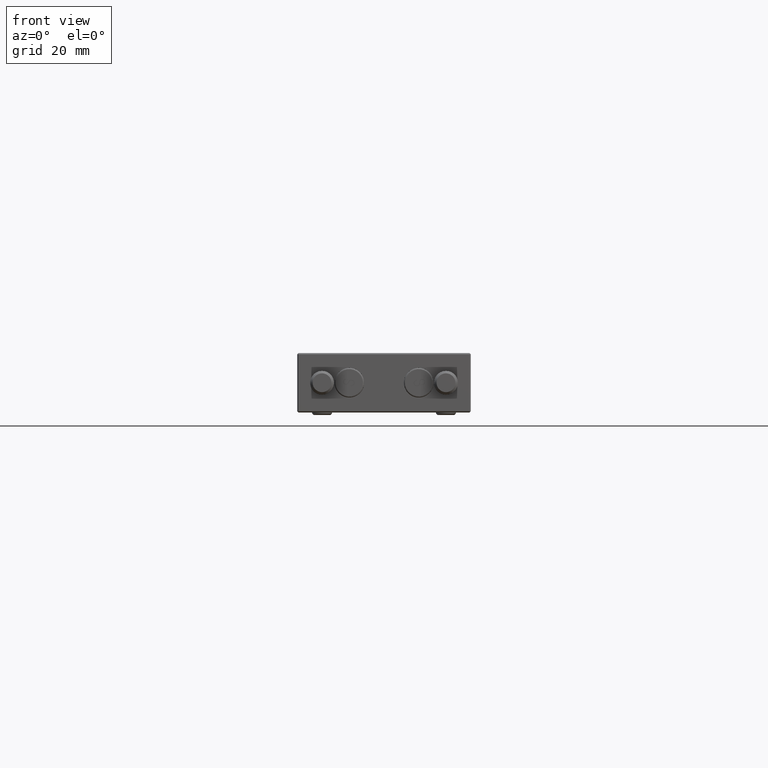
[diagram: clean part render]
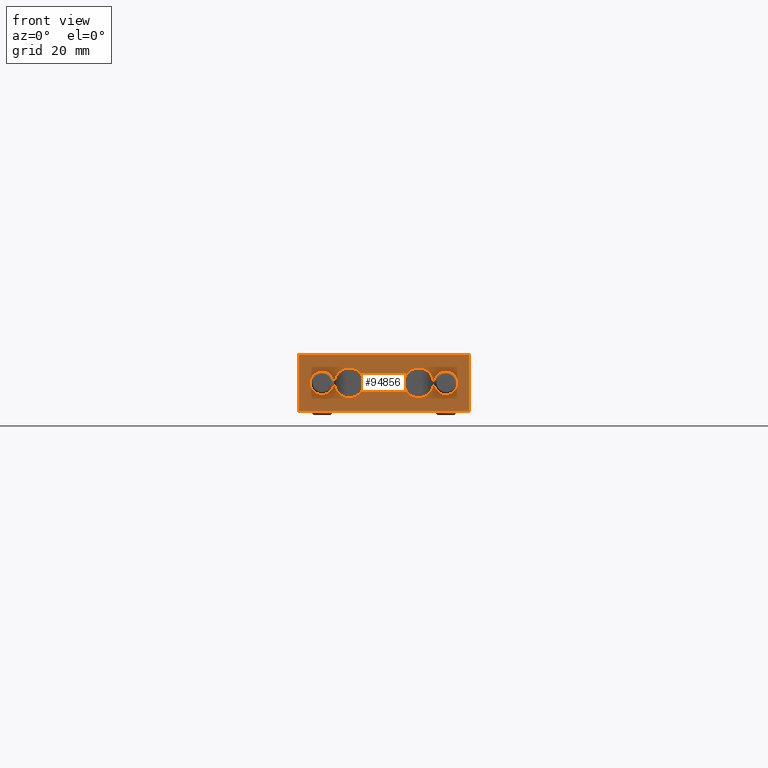
[diagram: same view with one face highlighted and labeled with its STEP entity id]
A machine part, front view. The second image highlights one B-rep face of the part: STEP entity #94856.
In plain terms, the highlighted planar face has unit normal (0, 1, 0).
Its self-contained STEP definition (entity closure, byte-faithful):
#66 = DIRECTION ( 'NONE',  ( 0.000000000000000000, 1.000000000000000000, 0.000000000000000000 ) ) ;
#664 = PLANE ( 'NONE',  #41954 ) ;
#2972 = CARTESIAN_POINT ( 'NONE',  ( -12.50000000000000000, 0.000000000000000000, -1.530808498934191324E-15 ) ) ;
#3305 = CIRCLE ( 'NONE', #5198, 2.399999999999999023 ) ;
#3796 = VERTEX_POINT ( 'NONE', #56646 ) ;
#3903 = VERTEX_POINT ( 'NONE', #100871 ) ;
#5198 = AXIS2_PLACEMENT_3D ( 'NONE', #2972, #75808, #56733 ) ;
#6355 = ORIENTED_EDGE ( 'NONE', *, *, #21929, .T. ) ;
#7058 = DIRECTION ( 'NONE',  ( -0.000000000000000000, -1.000000000000000000, -0.000000000000000000 ) ) ;
#8580 = AXIS2_PLACEMENT_3D ( 'NONE', #103493, #58089, #12720 ) ;
#9022 = FACE_BOUND ( 'NONE', #19961, .T. ) ;
#10180 = EDGE_CURVE ( 'NONE', #40099, #71996, #117508, .T. ) ;
#10207 = FACE_BOUND ( 'NONE', #82655, .T. ) ;
#11998 = EDGE_CURVE ( 'NONE', #3903, #42832, #46673, .T. ) ;
#12367 = CARTESIAN_POINT ( 'NONE',  ( 17.25000000000001066, 0.000000000000000000, 5.750000000000000888 ) ) ;
#12720 = DIRECTION ( 'NONE',  ( 0.000000000000000000, 0.000000000000000000, 1.000000000000000000 ) ) ;
#12989 = EDGE_CURVE ( 'NONE', #42832, #3903, #33574, .T. ) ;
#15357 = EDGE_CURVE ( 'NONE', #67470, #29190, #3305, .T. ) ;
#16622 = CARTESIAN_POINT ( 'NONE',  ( 17.25000000000001066, 0.000000000000000000, 0.000000000000000000 ) ) ;
#17070 = DIRECTION ( 'NONE',  ( 0.000000000000000000, -1.000000000000000000, 0.000000000000000000 ) ) ;
#17867 = CARTESIAN_POINT ( 'NONE',  ( -12.50000000000000000, 0.000000000000000000, -2.400000000000000799 ) ) ;
#19961 = EDGE_LOOP ( 'NONE', ( #57112, #100105 ) ) ;
#21929 = EDGE_CURVE ( 'NONE', #71996, #61278, #83298, .T. ) ;
#22137 = CARTESIAN_POINT ( 'NONE',  ( -7.000000000000000000, 0.000000000000000000, -8.572527594031473190E-16 ) ) ;
#23882 = CARTESIAN_POINT ( 'NONE',  ( -7.000000000000000000, 0.000000000000000000, 2.999999999999999556 ) ) ;
#24138 = CARTESIAN_POINT ( 'NONE',  ( 12.50000000000000000, 0.000000000000000000, -1.530808498934191324E-15 ) ) ;
#24504 = EDGE_LOOP ( 'NONE', ( #60568, #105478 ) ) ;
#25608 = CIRCLE ( 'NONE', #54225, 2.999999999999998224 ) ;
#26510 = DIRECTION ( 'NONE',  ( 1.000000000000000000, 0.000000000000000000, 2.478176394252581387E-17 ) ) ;
#27948 = DIRECTION ( 'NONE',  ( -0.000000000000000000, -1.000000000000000000, -0.000000000000000000 ) ) ;
#28954 = DIRECTION ( 'NONE',  ( -1.000000000000000000, 0.000000000000000000, 0.000000000000000000 ) ) ;
#29190 = VERTEX_POINT ( 'NONE', #37504 ) ;
#30091 = CARTESIAN_POINT ( 'NONE',  ( -17.24999999999998934, 0.000000000000000000, -5.750000000000000000 ) ) ;
#32708 = EDGE_CURVE ( 'NONE', #3796, #79153, #25608, .T. ) ;
#33015 = EDGE_LOOP ( 'NONE', ( #91037, #6355, #68771, #57382 ) ) ;
#33574 = CIRCLE ( 'NONE', #67840, 2.399999999999999023 ) ;
#34414 = EDGE_CURVE ( 'NONE', #29190, #67470, #57618, .T. ) ;
#36660 = CARTESIAN_POINT ( 'NONE',  ( 12.50000000000000000, 0.000000000000000000, 2.399999999999997247 ) ) ;
#37504 = CARTESIAN_POINT ( 'NONE',  ( -12.50000000000000000, 0.000000000000000000, 2.399999999999997247 ) ) ;
#37537 = AXIS2_PLACEMENT_3D ( 'NONE', #49897, #51678, #114420 ) ;
#40099 = VERTEX_POINT ( 'NONE', #107305 ) ;
#40543 = EDGE_CURVE ( 'NONE', #62571, #40099, #43825, .T. ) ;
#40636 = DIRECTION ( 'NONE',  ( 0.000000000000000000, -1.000000000000000000, 0.000000000000000000 ) ) ;
#41954 = AXIS2_PLACEMENT_3D ( 'NONE', #74667, #66, #45423 ) ;
#42354 = AXIS2_PLACEMENT_3D ( 'NONE', #73307, #27948, #75663 ) ;
#42832 = VERTEX_POINT ( 'NONE', #36660 ) ;
#43825 = LINE ( 'NONE', #80270, #58804 ) ;
#44361 = DIRECTION ( 'NONE',  ( -0.000000000000000000, -1.000000000000000000, -0.000000000000000000 ) ) ;
#45423 = DIRECTION ( 'NONE',  ( 0.000000000000000000, -0.000000000000000000, 1.000000000000000000 ) ) ;
#46673 = CIRCLE ( 'NONE', #86756, 2.399999999999999023 ) ;
#47461 = ORIENTED_EDGE ( 'NONE', *, *, #12989, .F. ) ;
#48692 = VERTEX_POINT ( 'NONE', #84265 ) ;
#48935 = CIRCLE ( 'NONE', #37537, 3.000000000000000444 ) ;
#49872 = CARTESIAN_POINT ( 'NONE',  ( -17.24999999999998934, 0.000000000000000000, 5.750000000000000888 ) ) ;
#49897 = CARTESIAN_POINT ( 'NONE',  ( -7.000000000000000000, 0.000000000000000000, -8.572527594031473190E-16 ) ) ;
#50854 = CARTESIAN_POINT ( 'NONE',  ( -17.24999999999998934, 0.000000000000000000, 0.000000000000000000 ) ) ;
#51678 = DIRECTION ( 'NONE',  ( 0.000000000000000000, -1.000000000000000000, 0.000000000000000000 ) ) ;
#52037 = CIRCLE ( 'NONE', #59714, 3.000000000000000444 ) ;
#53463 = DIRECTION ( 'NONE',  ( 0.000000000000000000, 0.000000000000000000, 1.000000000000000000 ) ) ;
#54225 = AXIS2_PLACEMENT_3D ( 'NONE', #98879, #17070, #53463 ) ;
#56646 = CARTESIAN_POINT ( 'NONE',  ( 7.000000000000000000, 0.000000000000000000, -2.999999999999999112 ) ) ;
#56733 = DIRECTION ( 'NONE',  ( 0.000000000000000000, 0.000000000000000000, 1.000000000000000000 ) ) ;
#57112 = ORIENTED_EDGE ( 'NONE', *, *, #108764, .F. ) ;
#57382 = ORIENTED_EDGE ( 'NONE', *, *, #40543, .T. ) ;
#57618 = CIRCLE ( 'NONE', #42354, 2.399999999999999023 ) ;
#58089 = DIRECTION ( 'NONE',  ( 0.000000000000000000, -1.000000000000000000, 0.000000000000000000 ) ) ;
#58194 = CIRCLE ( 'NONE', #8580, 2.999999999999998224 ) ;
#58804 = VECTOR ( 'NONE', #26510, 1000.000000000000000 ) ;
#58981 = ORIENTED_EDGE ( 'NONE', *, *, #11998, .F. ) ;
#59714 = AXIS2_PLACEMENT_3D ( 'NONE', #22137, #40636, #111744 ) ;
#59815 = LINE ( 'NONE', #50854, #77292 ) ;
#60568 = ORIENTED_EDGE ( 'NONE', *, *, #34414, .F. ) ;
#61278 = VERTEX_POINT ( 'NONE', #49872 ) ;
#61406 = DIRECTION ( 'NONE',  ( 0.000000000000000000, 0.000000000000000000, 1.000000000000000000 ) ) ;
#62571 = VERTEX_POINT ( 'NONE', #30091 ) ;
#63138 = CARTESIAN_POINT ( 'NONE',  ( 12.50000000000000000, 0.000000000000000000, -1.530808498934191324E-15 ) ) ;
#65494 = EDGE_CURVE ( 'NONE', #96011, #48692, #52037, .T. ) ;
#67470 = VERTEX_POINT ( 'NONE', #17867 ) ;
#67840 = AXIS2_PLACEMENT_3D ( 'NONE', #63138, #7058, #61406 ) ;
#68771 = ORIENTED_EDGE ( 'NONE', *, *, #83764, .T. ) ;
#70112 = DIRECTION ( 'NONE',  ( 0.000000000000000000, 0.000000000000000000, 1.000000000000000000 ) ) ;
#71996 = VERTEX_POINT ( 'NONE', #12367 ) ;
#73307 = CARTESIAN_POINT ( 'NONE',  ( -12.50000000000000000, 0.000000000000000000, -1.530808498934191324E-15 ) ) ;
#74667 = CARTESIAN_POINT ( 'NONE',  ( 0.000000000000000000, 0.000000000000000000, 0.000000000000000000 ) ) ;
#75663 = DIRECTION ( 'NONE',  ( 0.000000000000000000, 0.000000000000000000, 1.000000000000000000 ) ) ;
#75808 = DIRECTION ( 'NONE',  ( -0.000000000000000000, -1.000000000000000000, -0.000000000000000000 ) ) ;
#77292 = VECTOR ( 'NONE', #87292, 1000.000000000000000 ) ;
#79153 = VERTEX_POINT ( 'NONE', #95097 ) ;
#80270 = CARTESIAN_POINT ( 'NONE',  ( 1.424951426695234329E-16, 0.000000000000000000, -5.750000000000000000 ) ) ;
#82471 = FACE_BOUND ( 'NONE', #24504, .T. ) ;
#82655 = EDGE_LOOP ( 'NONE', ( #88947, #111573 ) ) ;
#83060 = FACE_BOUND ( 'NONE', #103219, .T. ) ;
#83298 = LINE ( 'NONE', #92245, #86882 ) ;
#83764 = EDGE_CURVE ( 'NONE', #61278, #62571, #59815, .T. ) ;
#84265 = CARTESIAN_POINT ( 'NONE',  ( -7.000000000000000000, 0.000000000000000000, -3.000000000000001332 ) ) ;
#86756 = AXIS2_PLACEMENT_3D ( 'NONE', #24138, #44361, #70112 ) ;
#86882 = VECTOR ( 'NONE', #28954, 1000.000000000000000 ) ;
#87292 = DIRECTION ( 'NONE',  ( 0.000000000000000000, 0.000000000000000000, -1.000000000000000000 ) ) ;
#88947 = ORIENTED_EDGE ( 'NONE', *, *, #32708, .F. ) ;
#90615 = DIRECTION ( 'NONE',  ( 0.000000000000000000, 0.000000000000000000, 1.000000000000000000 ) ) ;
#91037 = ORIENTED_EDGE ( 'NONE', *, *, #10180, .T. ) ;
#92014 = FACE_OUTER_BOUND ( 'NONE', #33015, .T. ) ;
#92245 = CARTESIAN_POINT ( 'NONE',  ( 0.000000000000000000, 0.000000000000000000, 5.750000000000000888 ) ) ;
#94856 = ADVANCED_FACE ( 'NONE', ( #92014, #9022, #10207, #83060, #82471 ), #664, .F. ) ;
#95097 = CARTESIAN_POINT ( 'NONE',  ( 7.000000000000000000, 0.000000000000000000, 2.999999999999997335 ) ) ;
#96011 = VERTEX_POINT ( 'NONE', #23882 ) ;
#98879 = CARTESIAN_POINT ( 'NONE',  ( 7.000000000000000000, 0.000000000000000000, -8.572527594031473190E-16 ) ) ;
#100105 = ORIENTED_EDGE ( 'NONE', *, *, #65494, .F. ) ;
#100871 = CARTESIAN_POINT ( 'NONE',  ( 12.50000000000000000, 0.000000000000000000, -2.400000000000000799 ) ) ;
#103219 = EDGE_LOOP ( 'NONE', ( #47461, #58981 ) ) ;
#103493 = CARTESIAN_POINT ( 'NONE',  ( 7.000000000000000000, 0.000000000000000000, -8.572527594031473190E-16 ) ) ;
#103832 = EDGE_CURVE ( 'NONE', #79153, #3796, #58194, .T. ) ;
#105478 = ORIENTED_EDGE ( 'NONE', *, *, #15357, .F. ) ;
#107305 = CARTESIAN_POINT ( 'NONE',  ( 17.25000000000001066, 0.000000000000000000, -5.749999999999999112 ) ) ;
#108764 = EDGE_CURVE ( 'NONE', #48692, #96011, #48935, .T. ) ;
#111573 = ORIENTED_EDGE ( 'NONE', *, *, #103832, .F. ) ;
#111660 = VECTOR ( 'NONE', #90615, 1000.000000000000000 ) ;
#111744 = DIRECTION ( 'NONE',  ( 0.000000000000000000, 0.000000000000000000, -1.000000000000000000 ) ) ;
#114420 = DIRECTION ( 'NONE',  ( 0.000000000000000000, 0.000000000000000000, -1.000000000000000000 ) ) ;
#117508 = LINE ( 'NONE', #16622, #111660 ) ;